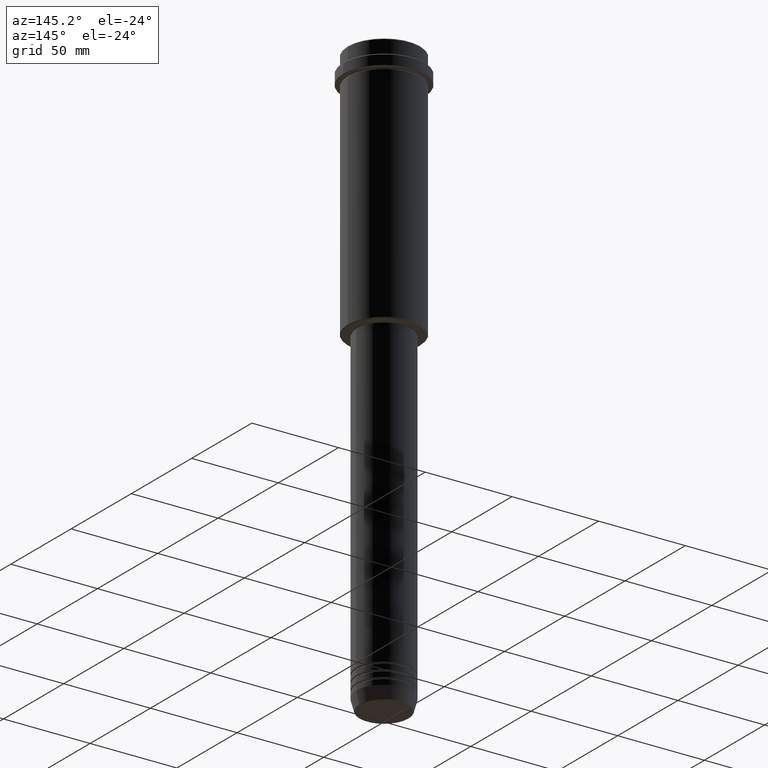
[diagram: clean part render]
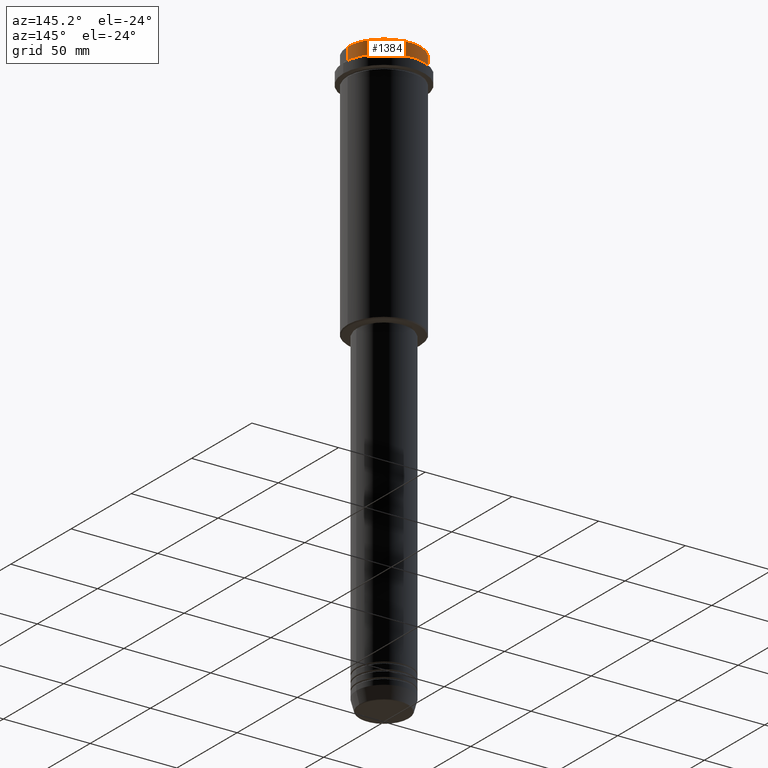
[diagram: same view with one face highlighted and labeled with its STEP entity id]
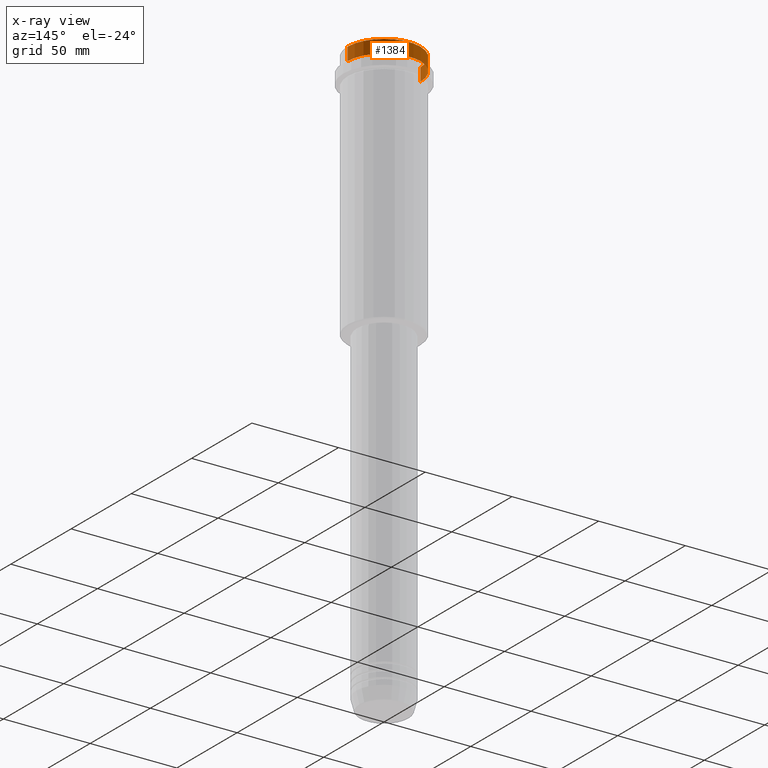
[diagram: x-ray of the same camera — body ghosted, the highlighted face saturated]
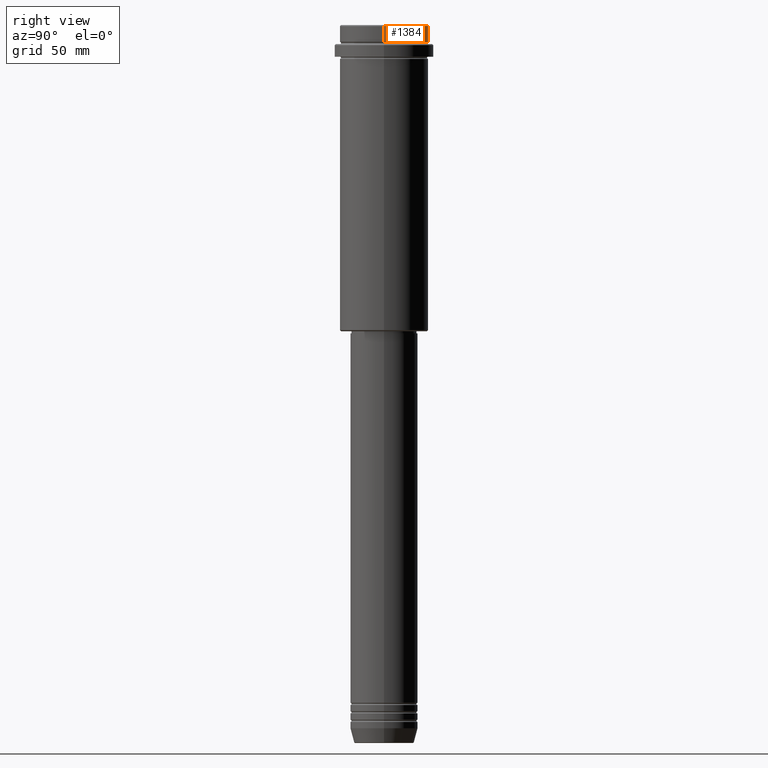
[diagram: same view with one face highlighted and labeled with its STEP entity id]
A machine part, auxiliary view. The second image highlights one B-rep face of the part: STEP entity #1384.
The next image is the same camera in x-ray: the body ghosted, the highlighted face saturated — about 0% of this face is hidden behind the body in this view.
A second angle (right view) of the same face is appended — the face is thin or edge-on in the first view.
In plain terms, the highlighted cylindrical surface (partial cylindrical patch) has radius 21 mm, axis along (-0, -0, 1).
Its self-contained STEP definition (entity closure, byte-faithful):
#13 = VECTOR ( 'NONE', #1309, 1000.000000000000000 ) ;
#169 = EDGE_CURVE ( 'NONE', #988, #1219, #1208, .T. ) ;
#227 = VERTEX_POINT ( 'NONE', #864 ) ;
#233 = CIRCLE ( 'NONE', #581, 20.99999999999999645 ) ;
#241 = ORIENTED_EDGE ( 'NONE', *, *, #169, .F. ) ;
#353 = DIRECTION ( 'NONE',  ( -0.000000000000000000, -0.000000000000000000, 1.000000000000000000 ) ) ;
#375 = CARTESIAN_POINT ( 'NONE',  ( 20.99999999999999645, 0.000000000000000000, -0.5000000000000628386 ) ) ;
#436 = LINE ( 'NONE', #1320, #13 ) ;
#438 = CARTESIAN_POINT ( 'NONE',  ( -20.99999999999999645, 2.571758278209441267E-15, -0.5000000000000628386 ) ) ;
#479 = CARTESIAN_POINT ( 'NONE',  ( 20.99999999999999645, 0.000000000000000000, 0.000000000000000000 ) ) ;
#512 = ORIENTED_EDGE ( 'NONE', *, *, #638, .T. ) ;
#550 = EDGE_LOOP ( 'NONE', ( #512, #741, #1388, #241 ) ) ;
#556 = AXIS2_PLACEMENT_3D ( 'NONE', #1097, #353, #1362 ) ;
#581 = AXIS2_PLACEMENT_3D ( 'NONE', #826, #921, #721 ) ;
#629 = AXIS2_PLACEMENT_3D ( 'NONE', #751, #1381, #868 ) ;
#638 = EDGE_CURVE ( 'NONE', #988, #227, #1132, .T. ) ;
#678 = DIRECTION ( 'NONE',  ( -0.000000000000000000, -0.000000000000000000, 1.000000000000000000 ) ) ;
#721 = DIRECTION ( 'NONE',  ( 1.000000000000000000, 0.000000000000000000, 0.000000000000000000 ) ) ;
#741 = ORIENTED_EDGE ( 'NONE', *, *, #1148, .T. ) ;
#751 = CARTESIAN_POINT ( 'NONE',  ( 0.000000000000000000, 0.000000000000000000, 0.000000000000000000 ) ) ;
#826 = CARTESIAN_POINT ( 'NONE',  ( 0.000000000000000000, 0.000000000000000000, -0.5000000000000628386 ) ) ;
#864 = CARTESIAN_POINT ( 'NONE',  ( -20.99999999999999645, 2.571758278209441267E-15, -7.999999999999998224 ) ) ;
#868 = DIRECTION ( 'NONE',  ( 1.000000000000000000, 0.000000000000000000, 0.000000000000000000 ) ) ;
#921 = DIRECTION ( 'NONE',  ( 0.000000000000000000, 0.000000000000000000, -1.000000000000000000 ) ) ;
#988 = VERTEX_POINT ( 'NONE', #1274 ) ;
#1059 = VECTOR ( 'NONE', #678, 1000.000000000000000 ) ;
#1076 = FACE_OUTER_BOUND ( 'NONE', #550, .T. ) ;
#1097 = CARTESIAN_POINT ( 'NONE',  ( 0.000000000000000000, 0.000000000000000000, -7.999999999999998224 ) ) ;
#1132 = CIRCLE ( 'NONE', #556, 20.99999999999999645 ) ;
#1148 = EDGE_CURVE ( 'NONE', #227, #1412, #436, .T. ) ;
#1208 = LINE ( 'NONE', #479, #1059 ) ;
#1219 = VERTEX_POINT ( 'NONE', #375 ) ;
#1274 = CARTESIAN_POINT ( 'NONE',  ( 20.99999999999999645, 0.000000000000000000, -7.999999999999998224 ) ) ;
#1293 = CYLINDRICAL_SURFACE ( 'NONE', #629, 20.99999999999999645 ) ;
#1309 = DIRECTION ( 'NONE',  ( -0.000000000000000000, -0.000000000000000000, 1.000000000000000000 ) ) ;
#1320 = CARTESIAN_POINT ( 'NONE',  ( -20.99999999999999645, 2.571758278209441267E-15, 0.000000000000000000 ) ) ;
#1322 = EDGE_CURVE ( 'NONE', #1412, #1219, #233, .T. ) ;
#1362 = DIRECTION ( 'NONE',  ( 1.000000000000000000, 0.000000000000000000, 0.000000000000000000 ) ) ;
#1381 = DIRECTION ( 'NONE',  ( -0.000000000000000000, -0.000000000000000000, 1.000000000000000000 ) ) ;
#1384 = ADVANCED_FACE ( 'NONE', ( #1076 ), #1293, .T. ) ;
#1388 = ORIENTED_EDGE ( 'NONE', *, *, #1322, .T. ) ;
#1412 = VERTEX_POINT ( 'NONE', #438 ) ;